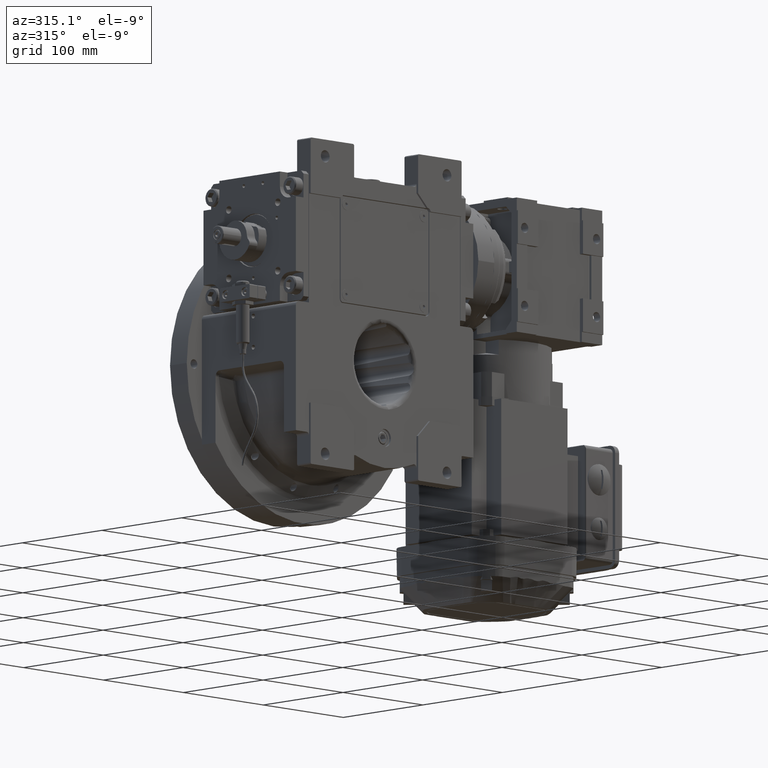
[diagram: clean part render]
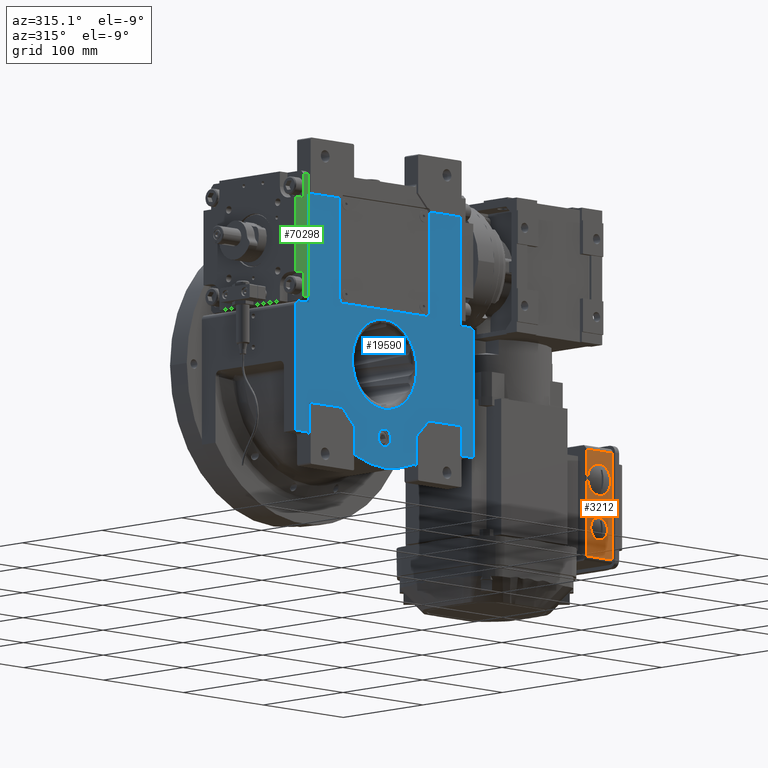
[diagram: same view with three faces highlighted in distinct colors, each labeled with its STEP entity id]
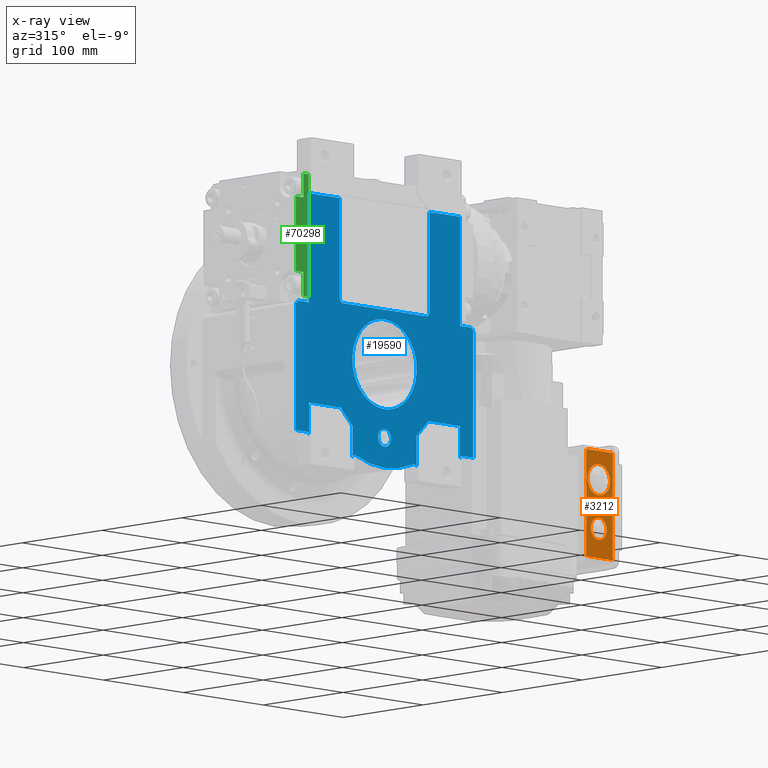
[diagram: x-ray of the same camera — body ghosted, the three highlighted faces saturated]
A machine part, auxiliary view with three faces highlighted in distinct colors.
The next image is the same camera in x-ray (body ghosted, the three faces saturated) — at least one of them is partly hidden behind the body in this view.
Their STEP definitions:

[orange] entity #3212 — the highlighted planar face has unit normal (-0, -1, 0).
#1805 = ORIENTED_EDGE ( 'NONE', *, *, #50915, .T. ) ;
#2577 = VECTOR ( 'NONE', #31025, 1000.000000000000000 ) ;
#3038 = VERTEX_POINT ( 'NONE', #28538 ) ;
#3056 = CARTESIAN_POINT ( 'NONE',  ( 157.7000000000089983, -88.50000000000000000, -22.00000000000138556 ) ) ;
#3212 = ADVANCED_FACE ( 'NONE', ( #88800, #46793, #22441 ), #39584, .T. ) ;
#3644 = CARTESIAN_POINT ( 'NONE',  ( 185.7000000000000171, -88.50000000000000000, -22.00000000000166267 ) ) ;
#4217 = DIRECTION ( 'NONE',  ( -2.142138711528201561E-47, -1.000000000000000000, -6.640859809432788890E-48 ) ) ;
#4687 = LINE ( 'NONE', #52411, #51243 ) ;
#5471 = CARTESIAN_POINT ( 'NONE',  ( 215.6999999999999886, -88.50000000000000000, -22.00000000000194333 ) ) ;
#6213 = CARTESIAN_POINT ( 'NONE',  ( 145.6999999999999886, -72.99999999999998579, -22.00000000000138556 ) ) ;
#6885 = DIRECTION ( 'NONE',  ( -8.881784197001252323E-15, 6.640859809432791321E-48, 1.000000000000000000 ) ) ;
#7254 = AXIS2_PLACEMENT_3D ( 'NONE', #57507, #49187, #73526 ) ;
#9495 = DIRECTION ( 'NONE',  ( 1.000000000000000000, 0.000000000000000000, -8.921435019315033831E-15 ) ) ;
#10370 = DIRECTION ( 'NONE',  ( -2.142138711528201561E-47, -1.000000000000000000, -6.640859809432788890E-48 ) ) ;
#11633 = ORIENTED_EDGE ( 'NONE', *, *, #81505, .T. ) ;
#11899 = EDGE_LOOP ( 'NONE', ( #11633, #35870 ) ) ;
#14381 = CARTESIAN_POINT ( 'NONE',  ( 193.7000000000000171, -72.99999999999998579, -22.00000000000180123 ) ) ;
#19653 = ORIENTED_EDGE ( 'NONE', *, *, #58312, .T. ) ;
#22441 = FACE_BOUND ( 'NONE', #35117, .T. ) ;
#22664 = LINE ( 'NONE', #14381, #78678 ) ;
#22925 = CARTESIAN_POINT ( 'NONE',  ( 241.6999999999999602, -106.0000000000000142, -22.00000000000208189 ) ) ;
#23061 = EDGE_LOOP ( 'NONE', ( #103809, #1805, #69135, #19653 ) ) ;
#28538 = CARTESIAN_POINT ( 'NONE',  ( 225.7000000000000171, -88.50000000000000000, -22.00000000000208189 ) ) ;
#28763 = CARTESIAN_POINT ( 'NONE',  ( 241.6999999999999602, -106.0000000000000142, -22.00000000000208189 ) ) ;
#29391 = ORIENTED_EDGE ( 'NONE', *, *, #101309, .T. ) ;
#31025 = DIRECTION ( 'NONE',  ( -2.142138711528201561E-47, -1.000000000000000000, -6.640859809432788890E-48 ) ) ;
#33329 = VERTEX_POINT ( 'NONE', #100977 ) ;
#33959 = CARTESIAN_POINT ( 'NONE',  ( 171.6999999999999886, -88.50000000000000000, -22.00000000000152411 ) ) ;
#33981 = AXIS2_PLACEMENT_3D ( 'NONE', #56191, #63919, #4217 ) ;
#35020 = VERTEX_POINT ( 'NONE', #37938 ) ;
#35117 = EDGE_LOOP ( 'NONE', ( #29391, #65363 ) ) ;
#35870 = ORIENTED_EDGE ( 'NONE', *, *, #67819, .T. ) ;
#37938 = CARTESIAN_POINT ( 'NONE',  ( 241.6999999999999602, -72.99999999999998579, -22.00000000000208189 ) ) ;
#38635 = DIRECTION ( 'NONE',  ( -8.881784197001252323E-15, 6.640859809432791321E-48, 1.000000000000000000 ) ) ;
#39584 = PLANE ( 'NONE',  #33981 ) ;
#39877 = CARTESIAN_POINT ( 'NONE',  ( 241.6999999999999602, -71.99999999999998579, -22.00000000000208189 ) ) ;
#42831 = VERTEX_POINT ( 'NONE', #3056 ) ;
#43221 = DIRECTION ( 'NONE',  ( -8.881784197001252323E-15, 6.640859809432791321E-48, 1.000000000000000000 ) ) ;
#44224 = VECTOR ( 'NONE', #90917, 1000.000000000000000 ) ;
#46793 = FACE_BOUND ( 'NONE', #11899, .T. ) ;
#49187 = DIRECTION ( 'NONE',  ( -8.881784197001252323E-15, 6.640859809432791321E-48, 1.000000000000000000 ) ) ;
#50734 = VERTEX_POINT ( 'NONE', #28763 ) ;
#50915 = EDGE_CURVE ( 'NONE', #79741, #35020, #22664, .T. ) ;
#51157 = VERTEX_POINT ( 'NONE', #61829 ) ;
#51243 = VECTOR ( 'NONE', #10370, 1000.000000000000000 ) ;
#52411 = CARTESIAN_POINT ( 'NONE',  ( 145.6999999999999886, -71.99999999999998579, -22.00000000000138556 ) ) ;
#52509 = CIRCLE ( 'NONE', #78939, 10.00000000001088907 ) ;
#53168 = VERTEX_POINT ( 'NONE', #3644 ) ;
#56191 = CARTESIAN_POINT ( 'NONE',  ( 193.7000000000000171, -71.99999999999998579, -22.00000000000180123 ) ) ;
#56336 = DIRECTION ( 'NONE',  ( 1.000000000000000000, 0.000000000000000000, -9.020562075069573995E-15 ) ) ;
#56409 = DIRECTION ( 'NONE',  ( 1.000000000000000000, 2.142138711528199616E-47, -8.881784197001252323E-15 ) ) ;
#57507 = CARTESIAN_POINT ( 'NONE',  ( 215.6999999999999886, -88.50000000000000000, -22.00000000000194333 ) ) ;
#58312 = EDGE_CURVE ( 'NONE', #50734, #51157, #82083, .T. ) ;
#59800 = AXIS2_PLACEMENT_3D ( 'NONE', #33959, #6885, #67672 ) ;
#61829 = CARTESIAN_POINT ( 'NONE',  ( 145.6999999999999886, -106.0000000000000142, -22.00000000000138556 ) ) ;
#63919 = DIRECTION ( 'NONE',  ( 8.881784197001252323E-15, 6.640859809432598067E-48, -1.000000000000000000 ) ) ;
#65363 = ORIENTED_EDGE ( 'NONE', *, *, #87382, .T. ) ;
#67672 = DIRECTION ( 'NONE',  ( 1.000000000000000000, 0.000000000000000000, -8.921435019315033831E-15 ) ) ;
#67819 = EDGE_CURVE ( 'NONE', #42831, #53168, #86217, .T. ) ;
#69135 = ORIENTED_EDGE ( 'NONE', *, *, #108612, .T. ) ;
#70146 = CIRCLE ( 'NONE', #84281, 13.99999999999099209 ) ;
#73526 = DIRECTION ( 'NONE',  ( 1.000000000000000000, 0.000000000000000000, -9.020562075069573995E-15 ) ) ;
#74330 = CIRCLE ( 'NONE', #7254, 10.00000000001088907 ) ;
#78678 = VECTOR ( 'NONE', #56409, 1000.000000000000000 ) ;
#78939 = AXIS2_PLACEMENT_3D ( 'NONE', #5471, #38635, #56336 ) ;
#79741 = VERTEX_POINT ( 'NONE', #6213 ) ;
#81505 = EDGE_CURVE ( 'NONE', #53168, #42831, #70146, .T. ) ;
#82083 = LINE ( 'NONE', #22925, #44224 ) ;
#84281 = AXIS2_PLACEMENT_3D ( 'NONE', #94088, #43221, #9495 ) ;
#86217 = CIRCLE ( 'NONE', #59800, 13.99999999999099209 ) ;
#87382 = EDGE_CURVE ( 'NONE', #33329, #3038, #74330, .T. ) ;
#88800 = FACE_OUTER_BOUND ( 'NONE', #23061, .T. ) ;
#90917 = DIRECTION ( 'NONE',  ( -1.000000000000000000, -2.142138711528199616E-47, 8.881784197001252323E-15 ) ) ;
#94088 = CARTESIAN_POINT ( 'NONE',  ( 171.6999999999999886, -88.50000000000000000, -22.00000000000152411 ) ) ;
#100977 = CARTESIAN_POINT ( 'NONE',  ( 205.6999999999889894, -88.50000000000000000, -22.00000000000194333 ) ) ;
#101309 = EDGE_CURVE ( 'NONE', #3038, #33329, #52509, .T. ) ;
#103809 = ORIENTED_EDGE ( 'NONE', *, *, #104425, .F. ) ;
#104425 = EDGE_CURVE ( 'NONE', #79741, #51157, #4687, .T. ) ;
#106789 = LINE ( 'NONE', #39877, #2577 ) ;
#108612 = EDGE_CURVE ( 'NONE', #35020, #50734, #106789, .T. ) ;

[blue] entity #19590 — the highlighted planar face has unit normal (0, 1, 0).
#251 = DIRECTION ( 'NONE',  ( 0.000000000000000000, 1.000000000000000000, 0.000000000000000000 ) ) ;
#573 = VERTEX_POINT ( 'NONE', #32188 ) ;
#626 = CIRCLE ( 'NONE', #67680, 92.99999999999995737 ) ;
#630 = CARTESIAN_POINT ( 'NONE',  ( 1.264666971694413862E-10, -53.50000000000000000, -40.30959420574829721 ) ) ;
#1095 = DIRECTION ( 'NONE',  ( 1.000000000000000000, 0.000000000000000000, 0.000000000000000000 ) ) ;
#1739 = LINE ( 'NONE', #8945, #104218 ) ;
#1842 = LINE ( 'NONE', #94720, #95482 ) ;
#2372 = VERTEX_POINT ( 'NONE', #39304 ) ;
#3259 = CARTESIAN_POINT ( 'NONE',  ( -8.881784197001250351E-16, -53.50000000000000000, -66.00000000000000000 ) ) ;
#3626 = VERTEX_POINT ( 'NONE', #53869 ) ;
#4277 = ORIENTED_EDGE ( 'NONE', *, *, #41148, .F. ) ;
#4386 = ORIENTED_EDGE ( 'NONE', *, *, #44337, .F. ) ;
#4595 = LINE ( 'NONE', #28386, #42633 ) ;
#4778 = DIRECTION ( 'NONE',  ( 1.000000000000000000, 0.000000000000000000, 1.387778780781246883E-14 ) ) ;
#4898 = CARTESIAN_POINT ( 'NONE',  ( -52.00000000000000000, -53.50000000000000000, 53.00000000000000000 ) ) ;
#5180 = ORIENTED_EDGE ( 'NONE', *, *, #100470, .F. ) ;
#5559 = CARTESIAN_POINT ( 'NONE',  ( 94.50000000000000000, -53.50000000000000000, -45.00000000000000000 ) ) ;
#5914 = ORIENTED_EDGE ( 'NONE', *, *, #95087, .F. ) ;
#5950 = LINE ( 'NONE', #22526, #91556 ) ;
#6041 = ORIENTED_EDGE ( 'NONE', *, *, #63861, .F. ) ;
#6825 = AXIS2_PLACEMENT_3D ( 'NONE', #3259, #36983, #70677 ) ;
#7002 = CARTESIAN_POINT ( 'NONE',  ( 97.50000000000000000, -53.50000000000000000, -74.43528539874399996 ) ) ;
#7051 = CARTESIAN_POINT ( 'NONE',  ( -94.50000000000000000, -53.50000000000000000, 143.0000000000000000 ) ) ;
#7073 = DIRECTION ( 'NONE',  ( 0.000000000000000000, 0.000000000000000000, -1.000000000000000000 ) ) ;
#7432 = EDGE_CURVE ( 'NONE', #34618, #53381, #5950, .T. ) ;
#8945 = CARTESIAN_POINT ( 'NONE',  ( -55.00000000000000000, -53.50000000000000000, -45.00000000000000000 ) ) ;
#9068 = DIRECTION ( 'NONE',  ( 1.000000000000000000, 0.000000000000000000, 0.000000000000000000 ) ) ;
#9814 = CIRCLE ( 'NONE', #25693, 3.000000000000002665 ) ;
#9931 = LINE ( 'NONE', #108944, #91611 ) ;
#9952 = VERTEX_POINT ( 'NONE', #92984 ) ;
#10142 = CARTESIAN_POINT ( 'NONE',  ( 56.00000000000000000, -53.50000000000000000, 142.0000000000000000 ) ) ;
#10312 = DIRECTION ( 'NONE',  ( 0.000000000000000000, -1.000000000000000000, 0.000000000000000000 ) ) ;
#10703 = DIRECTION ( 'NONE',  ( 0.000000000000000000, -1.000000000000000000, 0.000000000000000000 ) ) ;
#11915 = VERTEX_POINT ( 'NONE', #23320 ) ;
#12497 = DIRECTION ( 'NONE',  ( 0.000000000000000000, -1.000000000000000000, 0.000000000000000000 ) ) ;
#12589 = CARTESIAN_POINT ( 'NONE',  ( 107.0000000000000000, -53.50000000000000000, 41.00000000000000000 ) ) ;
#13190 = CARTESIAN_POINT ( 'NONE',  ( -94.50000000000000000, -53.50000000000000000, -74.43528539874409944 ) ) ;
#13274 = ORIENTED_EDGE ( 'NONE', *, *, #35000, .T. ) ;
#13939 = VERTEX_POINT ( 'NONE', #83299 ) ;
#14247 = AXIS2_PLACEMENT_3D ( 'NONE', #12589, #62908, #103826 ) ;
#14564 = VERTEX_POINT ( 'NONE', #10142 ) ;
#14767 = VERTEX_POINT ( 'NONE', #30560 ) ;
#14827 = CARTESIAN_POINT ( 'NONE',  ( 1.264666971694413862E-10, -53.50000000000000000, -40.30959420574829721 ) ) ;
#15657 = CIRCLE ( 'NONE', #6825, 8.000000000000000000 ) ;
#16029 = EDGE_CURVE ( 'NONE', #64399, #82327, #42224, .T. ) ;
#16260 = DIRECTION ( 'NONE',  ( 0.000000000000000000, 0.000000000000000000, -1.000000000000000000 ) ) ;
#16553 = CARTESIAN_POINT ( 'NONE',  ( 94.50000000000000000, -53.50000000000000000, 143.0000000000000000 ) ) ;
#17122 = EDGE_CURVE ( 'NONE', #19386, #43393, #82109, .T. ) ;
#17365 = EDGE_CURVE ( 'NONE', #43393, #74241, #65005, .T. ) ;
#17742 = EDGE_CURVE ( 'NONE', #2372, #14767, #49340, .T. ) ;
#18131 = EDGE_CURVE ( 'NONE', #90636, #42449, #40901, .T. ) ;
#18137 = ORIENTED_EDGE ( 'NONE', *, *, #48004, .T. ) ;
#18676 = CARTESIAN_POINT ( 'NONE',  ( 111.0000000000000000, -53.50000000000000000, -71.43528539874399996 ) ) ;
#18992 = DIRECTION ( 'NONE',  ( -0.7071067811865474617, 0.000000000000000000, -0.7071067811865474617 ) ) ;
#19386 = VERTEX_POINT ( 'NONE', #68409 ) ;
#19590 = ADVANCED_FACE ( 'NONE', ( #107608, #65592, #107072 ), #108153, .F. ) ;
#20119 = CARTESIAN_POINT ( 'NONE',  ( 40.00000000000000000, -53.50000000000000000, -88.58329413608420566 ) ) ;
#20313 = VERTEX_POINT ( 'NONE', #97425 ) ;
#20457 = ORIENTED_EDGE ( 'NONE', *, *, #46733, .T. ) ;
#21026 = AXIS2_PLACEMENT_3D ( 'NONE', #26925, #10312, #4778 ) ;
#21084 = CARTESIAN_POINT ( 'NONE',  ( -107.0000000000000000, -53.50000000000000000, 41.00000000000000000 ) ) ;
#21384 = VECTOR ( 'NONE', #24992, 1000.000000000000000 ) ;
#21645 = ORIENTED_EDGE ( 'NONE', *, *, #69999, .F. ) ;
#22325 = EDGE_CURVE ( 'NONE', #573, #14564, #108861, .T. ) ;
#22343 = ORIENTED_EDGE ( 'NONE', *, *, #57520, .T. ) ;
#22439 = DIRECTION ( 'NONE',  ( -0.3854166666666676289, 0.000000000000000000, 0.9227426472508761801 ) ) ;
#22526 = CARTESIAN_POINT ( 'NONE',  ( -94.50000000000000000, -53.50000000000000000, 143.0000000000000000 ) ) ;
#23120 = DIRECTION ( 'NONE',  ( 0.000000000000000000, -1.000000000000000000, 0.000000000000000000 ) ) ;
#23320 = CARTESIAN_POINT ( 'NONE',  ( -40.00000000000000000, -53.50000000000000000, -88.58329413608420566 ) ) ;
#24005 = CARTESIAN_POINT ( 'NONE',  ( 40.00000000000000000, -53.50000000000000000, -60.00000000000000000 ) ) ;
#24675 = AXIS2_PLACEMENT_3D ( 'NONE', #83543, #50377, #36898 ) ;
#24920 = CARTESIAN_POINT ( 'NONE',  ( -56.00000000000000000, -53.50000000000000000, 53.00000000000000000 ) ) ;
#24929 = ORIENTED_EDGE ( 'NONE', *, *, #85616, .F. ) ;
#24992 = DIRECTION ( 'NONE',  ( 1.000000000000000000, 0.000000000000000000, 0.000000000000000000 ) ) ;
#25299 = AXIS2_PLACEMENT_3D ( 'NONE', #4898, #23120, #32503 ) ;
#25693 = AXIS2_PLACEMENT_3D ( 'NONE', #7002, #40732, #108739 ) ;
#25906 = CARTESIAN_POINT ( 'NONE',  ( 8.000000000000000000, -53.50000000000000000, -66.00000000000000000 ) ) ;
#26282 = EDGE_LOOP ( 'NONE', ( #63156, #22343 ) ) ;
#26775 = ORIENTED_EDGE ( 'NONE', *, *, #84114, .F. ) ;
#26794 = DIRECTION ( 'NONE',  ( 0.000000000000000000, 0.000000000000000000, 1.000000000000000000 ) ) ;
#26925 = CARTESIAN_POINT ( 'NONE',  ( 51.99999999999940314, -53.50000000000000000, 142.0000000000000000 ) ) ;
#27075 = ORIENTED_EDGE ( 'NONE', *, *, #22325, .F. ) ;
#27101 = VERTEX_POINT ( 'NONE', #39969 ) ;
#28039 = CIRCLE ( 'NONE', #21026, 4.000000000000572875 ) ;
#28285 = AXIS2_PLACEMENT_3D ( 'NONE', #97834, #97275, #56370 ) ;
#28386 = CARTESIAN_POINT ( 'NONE',  ( 55.00000000000000000, -53.50000000000000000, -45.00000000000000000 ) ) ;
#28434 = VECTOR ( 'NONE', #36791, 1000.000000000000000 ) ;
#29035 = CARTESIAN_POINT ( 'NONE',  ( -55.00000000000000000, -53.50000000000000000, -45.00000000000000000 ) ) ;
#29369 = DIRECTION ( 'NONE',  ( -3.469446951953617344E-15, 0.000000000000000000, 1.000000000000000000 ) ) ;
#29743 = VECTOR ( 'NONE', #26794, 1000.000000000000000 ) ;
#29913 = DIRECTION ( 'NONE',  ( 0.000000000000000000, -1.000000000000000000, 0.000000000000000000 ) ) ;
#30230 = VERTEX_POINT ( 'NONE', #97337 ) ;
#30453 = DIRECTION ( 'NONE',  ( 6.319570704518680589E-16, 0.000000000000000000, 1.000000000000000000 ) ) ;
#30560 = CARTESIAN_POINT ( 'NONE',  ( -94.50000000000000000, -53.50000000000000000, 45.00000000000000000 ) ) ;
#30720 = DIRECTION ( 'NONE',  ( 1.000000000000000000, 0.000000000000000000, 0.000000000000000000 ) ) ;
#31646 =( BOUNDED_CURVE ( )  B_SPLINE_CURVE ( 3, ( #108448, #34348, #92402, #630 ),
 .UNSPECIFIED., .F., .F. ) 
 B_SPLINE_CURVE_WITH_KNOTS ( ( 4, 4 ),
 ( 4.574175343352308687, 7.715766673011676957 ),
 .UNSPECIFIED. ) 
 CURVE ( )  GEOMETRIC_REPRESENTATION_ITEM ( )  RATIONAL_B_SPLINE_CURVE ( ( 1.000000000000000000, 0.3333337746434750226, 0.3333337746434750226, 1.000000000000000000 ) ) 
 REPRESENTATION_ITEM ( '' )  );
#31716 = VERTEX_POINT ( 'NONE', #18676 ) ;
#32188 = CARTESIAN_POINT ( 'NONE',  ( 56.00000000000000000, -53.50000000000000000, 53.00000000000000000 ) ) ;
#32355 = DIRECTION ( 'NONE',  ( 0.000000000000000000, 0.000000000000000000, -1.000000000000000000 ) ) ;
#32461 = EDGE_LOOP ( 'NONE', ( #70068, #5914, #56764, #24929, #56259, #104214, #34679, #64378, #83946, #46102, #94807, #64218, #21645, #98805, #26775, #76427, #83138, #13274, #93562, #4386, #60217, #6041, #40421, #18137, #20457, #108441, #5180, #83955, #102303, #86743, #27075, #4277 ) ) ;
#32503 = DIRECTION ( 'NONE',  ( -1.000000000000000000, 0.000000000000000000, 1.734723475976808672E-15 ) ) ;
#32740 = CARTESIAN_POINT ( 'NONE',  ( -107.0000000000000000, -53.50000000000000000, 45.00000000000000000 ) ) ;
#34283 = LINE ( 'NONE', #100633, #103255 ) ;
#34348 = CARTESIAN_POINT ( 'NONE',  ( 80.61913312099713380, -53.49999999999999289, 40.30952624498025472 ) ) ;
#34618 = VERTEX_POINT ( 'NONE', #7051 ) ;
#34679 = ORIENTED_EDGE ( 'NONE', *, *, #17742, .F. ) ;
#35000 = EDGE_CURVE ( 'NONE', #85173, #82327, #38551, .T. ) ;
#35113 = CARTESIAN_POINT ( 'NONE',  ( -40.00000000000000000, -53.50000000000000000, -88.58329413608420566 ) ) ;
#35298 = DIRECTION ( 'NONE',  ( 0.000000000000000000, 0.000000000000000000, 1.000000000000000000 ) ) ;
#35747 = EDGE_CURVE ( 'NONE', #30230, #51120, #15657, .T. ) ;
#36294 = EDGE_CURVE ( 'NONE', #14564, #84661, #28039, .T. ) ;
#36791 = DIRECTION ( 'NONE',  ( 1.000000000000000000, 0.000000000000000000, 0.000000000000000000 ) ) ;
#36898 = DIRECTION ( 'NONE',  ( -0.9682458365518610277, 0.000000000000000000, 0.2499999999999737432 ) ) ;
#36983 = DIRECTION ( 'NONE',  ( 0.000000000000000000, -1.000000000000000000, 0.000000000000000000 ) ) ;
#38551 = CIRCLE ( 'NONE', #63256, 3.000000000000003997 ) ;
#38685 = CARTESIAN_POINT ( 'NONE',  ( -40.00000000000000000, -53.50000000000000000, -60.00000000000000000 ) ) ;
#39304 = CARTESIAN_POINT ( 'NONE',  ( -107.0000000000000000, -53.50000000000000000, 45.00000000000000000 ) ) ;
#39938 = VERTEX_POINT ( 'NONE', #58093 ) ;
#39969 = CARTESIAN_POINT ( 'NONE',  ( -52.00000000000000000, -53.50000000000000000, 49.00000000000000000 ) ) ;
#40421 = ORIENTED_EDGE ( 'NONE', *, *, #98028, .T. ) ;
#40545 = EDGE_CURVE ( 'NONE', #11915, #13939, #97020, .T. ) ;
#40732 = DIRECTION ( 'NONE',  ( 0.000000000000000000, 1.000000000000000000, 0.000000000000000000 ) ) ;
#40901 = LINE ( 'NONE', #16553, #76219 ) ;
#41143 = AXIS2_PLACEMENT_3D ( 'NONE', #100247, #100808, #42731 ) ;
#41148 = EDGE_CURVE ( 'NONE', #9952, #573, #107779, .T. ) ;
#41163 = DIRECTION ( 'NONE',  ( 0.000000000000000000, 0.000000000000000000, 1.000000000000000000 ) ) ;
#41383 = VERTEX_POINT ( 'NONE', #99466 ) ;
#41422 = CARTESIAN_POINT ( 'NONE',  ( -52.00000000000000000, -53.50000000000000000, 49.00000000000000000 ) ) ;
#42224 = LINE ( 'NONE', #24005, #50632 ) ;
#42449 = VERTEX_POINT ( 'NONE', #71709 ) ;
#42475 = CIRCLE ( 'NONE', #14247, 4.000000000000003553 ) ;
#42633 = VECTOR ( 'NONE', #18992, 1000.000000000000114 ) ;
#42731 = DIRECTION ( 'NONE',  ( -1.000000000000000000, 0.000000000000000000, 4.625929269271481378E-15 ) ) ;
#43128 = VERTEX_POINT ( 'NONE', #65496 ) ;
#43393 = VERTEX_POINT ( 'NONE', #96891 ) ;
#43449 = LINE ( 'NONE', #78802, #28434 ) ;
#44104 = CIRCLE ( 'NONE', #24675, 4.000000000000978773 ) ;
#44337 = EDGE_CURVE ( 'NONE', #71402, #64399, #4595, .T. ) ;
#44616 = VECTOR ( 'NONE', #97896, 1000.000000000000000 ) ;
#46102 = ORIENTED_EDGE ( 'NONE', *, *, #17122, .T. ) ;
#46733 = EDGE_CURVE ( 'NONE', #31716, #54063, #91235, .T. ) ;
#47927 = DIRECTION ( 'NONE',  ( 1.000000000000000000, 0.000000000000000000, 0.000000000000000000 ) ) ;
#48004 = EDGE_CURVE ( 'NONE', #94002, #31716, #34283, .T. ) ;
#49340 = LINE ( 'NONE', #32740, #21384 ) ;
#50377 = DIRECTION ( 'NONE',  ( 0.000000000000000000, -1.000000000000000000, 0.000000000000000000 ) ) ;
#50508 = VERTEX_POINT ( 'NONE', #29035 ) ;
#50632 = VECTOR ( 'NONE', #16260, 1000.000000000000000 ) ;
#50867 = AXIS2_PLACEMENT_3D ( 'NONE', #75961, #251, #41163 ) ;
#51120 = VERTEX_POINT ( 'NONE', #25906 ) ;
#52597 = DIRECTION ( 'NONE',  ( -1.000000000000000000, 0.000000000000000000, 0.000000000000000000 ) ) ;
#53381 = VERTEX_POINT ( 'NONE', #85636 ) ;
#53484 = CARTESIAN_POINT ( 'NONE',  ( 94.50000000000000000, -53.50000000000000000, 143.0000000000000000 ) ) ;
#53869 = CARTESIAN_POINT ( 'NONE',  ( 1.264666971694413862E-10, -53.50000000000000000, -40.30959420574829721 ) ) ;
#54063 = VERTEX_POINT ( 'NONE', #77611 ) ;
#54712 = AXIS2_PLACEMENT_3D ( 'NONE', #91532, #66125, #47927 ) ;
#54723 = VERTEX_POINT ( 'NONE', #106627 ) ;
#55085 = CARTESIAN_POINT ( 'NONE',  ( 1.421085471520200056E-14, -53.50000000000000000, -4.263256414560599853E-14 ) ) ;
#55254 = CIRCLE ( 'NONE', #25299, 3.999999999999996447 ) ;
#55451 = VECTOR ( 'NONE', #30453, 1000.000000000000000 ) ;
#55548 = LINE ( 'NONE', #87598, #57259 ) ;
#56259 = ORIENTED_EDGE ( 'NONE', *, *, #7432, .F. ) ;
#56370 = DIRECTION ( 'NONE',  ( 0.000000000000000000, 0.000000000000000000, -1.000000000000000000 ) ) ;
#56699 = CARTESIAN_POINT ( 'NONE',  ( -111.0000000000000000, -53.50000000000000000, -71.43528539874409944 ) ) ;
#56764 = ORIENTED_EDGE ( 'NONE', *, *, #82121, .F. ) ;
#57259 = VECTOR ( 'NONE', #89256, 1000.000000000000000 ) ;
#57402 = DIRECTION ( 'NONE',  ( 1.000000000000000000, 0.000000000000000000, 0.000000000000000000 ) ) ;
#57407 = CARTESIAN_POINT ( 'NONE',  ( -80.61913312124997333, -53.49999999999999289, 40.30955543265923069 ) ) ;
#57516 = LINE ( 'NONE', #5559, #44616 ) ;
#57520 = EDGE_CURVE ( 'NONE', #84443, #3626, #31646, .T. ) ;
#58093 = CARTESIAN_POINT ( 'NONE',  ( -111.0000000000000000, -53.50000000000000000, 41.00000000000000000 ) ) ;
#58206 = VECTOR ( 'NONE', #80686, 1000.000000000000114 ) ;
#58334 = CARTESIAN_POINT ( 'NONE',  ( -56.00000000000000000, -53.50000000000000000, 142.0000000000000000 ) ) ;
#59999 = CARTESIAN_POINT ( 'NONE',  ( -56.00000000000000000, -53.50000000000000000, 142.0000000000000000 ) ) ;
#60217 = ORIENTED_EDGE ( 'NONE', *, *, #60511, .F. ) ;
#60511 = EDGE_CURVE ( 'NONE', #41383, #71402, #57516, .T. ) ;
#62038 = EDGE_CURVE ( 'NONE', #3626, #84443, #108495, .T. ) ;
#62185 = CIRCLE ( 'NONE', #106398, 3.999999999999996447 ) ;
#62908 = DIRECTION ( 'NONE',  ( 0.000000000000000000, -1.000000000000000000, 0.000000000000000000 ) ) ;
#63156 = ORIENTED_EDGE ( 'NONE', *, *, #62038, .T. ) ;
#63256 = AXIS2_PLACEMENT_3D ( 'NONE', #89891, #88237, #22439 ) ;
#63861 = EDGE_CURVE ( 'NONE', #20313, #41383, #55548, .T. ) ;
#64218 = ORIENTED_EDGE ( 'NONE', *, *, #101400, .F. ) ;
#64378 = ORIENTED_EDGE ( 'NONE', *, *, #90016, .T. ) ;
#64399 = VERTEX_POINT ( 'NONE', #81358 ) ;
#64509 = VERTEX_POINT ( 'NONE', #24920 ) ;
#64935 = VECTOR ( 'NONE', #82636, 1000.000000000000000 ) ;
#65005 = CIRCLE ( 'NONE', #50867, 3.000000000000002665 ) ;
#65496 = CARTESIAN_POINT ( 'NONE',  ( -40.00000000000000000, -53.50000000000000000, -60.00000000000000000 ) ) ;
#65592 = FACE_BOUND ( 'NONE', #76585, .T. ) ;
#66125 = DIRECTION ( 'NONE',  ( -0.000000000000000000, 1.000000000000000000, 0.000000000000000000 ) ) ;
#66218 = CARTESIAN_POINT ( 'NONE',  ( -1.264761546777279996E-10, -53.50000000000000000, 40.30959420574835406 ) ) ;
#66810 = CARTESIAN_POINT ( 'NONE',  ( -94.50000000000000000, -53.50000000000000000, -45.00000000000000000 ) ) ;
#67680 = AXIS2_PLACEMENT_3D ( 'NONE', #55085, #12497, #81040 ) ;
#67921 = CARTESIAN_POINT ( 'NONE',  ( 56.00000000000000000, -53.50000000000000000, 53.00000000000000000 ) ) ;
#67937 = LINE ( 'NONE', #41422, #81680 ) ;
#68409 = CARTESIAN_POINT ( 'NONE',  ( -111.0000000000000000, -53.50000000000000000, -71.43528539874409944 ) ) ;
#69270 = DIRECTION ( 'NONE',  ( 0.000000000000000000, 0.000000000000000000, 1.000000000000000000 ) ) ;
#69307 = CARTESIAN_POINT ( 'NONE',  ( 8.881784197001250351E-16, -53.50000000000000000, -66.00000000000000000 ) ) ;
#69999 = EDGE_CURVE ( 'NONE', #50508, #104170, #1739, .T. ) ;
#70068 = ORIENTED_EDGE ( 'NONE', *, *, #106312, .F. ) ;
#70677 = DIRECTION ( 'NONE',  ( -1.000000000000000000, 0.000000000000000000, 0.000000000000000000 ) ) ;
#71402 = VERTEX_POINT ( 'NONE', #96937 ) ;
#71709 = CARTESIAN_POINT ( 'NONE',  ( 94.50000000000000000, -53.50000000000000000, 45.00000000000000000 ) ) ;
#74241 = VERTEX_POINT ( 'NONE', #13190 ) ;
#74943 = CARTESIAN_POINT ( 'NONE',  ( 35.84375000000000000, -53.50000000000000000, -85.81506619433150718 ) ) ;
#75961 = CARTESIAN_POINT ( 'NONE',  ( -97.50000000000000000, -53.50000000000000000, -74.43528539874409944 ) ) ;
#76219 = VECTOR ( 'NONE', #108361, 1000.000000000000000 ) ;
#76427 = ORIENTED_EDGE ( 'NONE', *, *, #40545, .T. ) ;
#76585 = EDGE_LOOP ( 'NONE', ( #77700, #92071 ) ) ;
#77287 = VECTOR ( 'NONE', #57402, 1000.000000000000000 ) ;
#77378 = DIRECTION ( 'NONE',  ( 0.000000000000000000, 0.000000000000000000, -1.000000000000000000 ) ) ;
#77611 = CARTESIAN_POINT ( 'NONE',  ( 111.0000000000000000, -53.50000000000000000, 41.00000000000000000 ) ) ;
#77700 = ORIENTED_EDGE ( 'NONE', *, *, #93351, .F. ) ;
#78802 = CARTESIAN_POINT ( 'NONE',  ( 55.87298334620739837, -53.50000000000000000, 143.0000000000000000 ) ) ;
#79073 = VECTOR ( 'NONE', #32355, 1000.000000000000000 ) ;
#79690 = LINE ( 'NONE', #35113, #29743 ) ;
#80686 = DIRECTION ( 'NONE',  ( -0.7071067811865474617, 0.000000000000000000, 0.7071067811865474617 ) ) ;
#80760 = VECTOR ( 'NONE', #7073, 1000.000000000000000 ) ;
#81040 = DIRECTION ( 'NONE',  ( -0.3854166666666672403, 0.000000000000000000, -0.9227426472508764022 ) ) ;
#81358 = CARTESIAN_POINT ( 'NONE',  ( 40.00000000000000000, -53.50000000000000000, -60.00000000000000000 ) ) ;
#81680 = VECTOR ( 'NONE', #30720, 1000.000000000000000 ) ;
#82109 = LINE ( 'NONE', #56699, #64935 ) ;
#82121 = EDGE_CURVE ( 'NONE', #101935, #64509, #108100, .T. ) ;
#82327 = VERTEX_POINT ( 'NONE', #20119 ) ;
#82636 = DIRECTION ( 'NONE',  ( 1.000000000000000000, 0.000000000000000000, 0.000000000000000000 ) ) ;
#82789 = CARTESIAN_POINT ( 'NONE',  ( 94.50000000000000000, -53.50000000000000000, 45.00000000000000000 ) ) ;
#83138 = ORIENTED_EDGE ( 'NONE', *, *, #107513, .T. ) ;
#83299 = CARTESIAN_POINT ( 'NONE',  ( -35.84375000000000000, -53.50000000000000000, -85.81506619433150718 ) ) ;
#83543 = CARTESIAN_POINT ( 'NONE',  ( -51.99999999999900524, -53.50000000000000000, 142.0000000000000000 ) ) ;
#83946 = ORIENTED_EDGE ( 'NONE', *, *, #84436, .T. ) ;
#83955 = ORIENTED_EDGE ( 'NONE', *, *, #18131, .F. ) ;
#84114 = EDGE_CURVE ( 'NONE', #11915, #43128, #79690, .T. ) ;
#84436 = EDGE_CURVE ( 'NONE', #39938, #19386, #9931, .T. ) ;
#84443 = VERTEX_POINT ( 'NONE', #101207 ) ;
#84661 = VERTEX_POINT ( 'NONE', #102702 ) ;
#85173 = VERTEX_POINT ( 'NONE', #74943 ) ;
#85310 = CIRCLE ( 'NONE', #95881, 8.000000000000000000 ) ;
#85616 = EDGE_CURVE ( 'NONE', #53381, #101935, #44104, .T. ) ;
#85636 = CARTESIAN_POINT ( 'NONE',  ( -55.87298334620739837, -53.50000000000000000, 143.0000000000000000 ) ) ;
#86444 = EDGE_CURVE ( 'NONE', #14767, #34618, #1842, .T. ) ;
#86743 = ORIENTED_EDGE ( 'NONE', *, *, #36294, .F. ) ;
#87598 = CARTESIAN_POINT ( 'NONE',  ( 94.50000000000000000, -53.50000000000000000, -74.43528539874399996 ) ) ;
#88237 = DIRECTION ( 'NONE',  ( 0.000000000000000000, 1.000000000000000000, 0.000000000000000000 ) ) ;
#89256 = DIRECTION ( 'NONE',  ( 0.000000000000000000, 0.000000000000000000, 1.000000000000000000 ) ) ;
#89891 = CARTESIAN_POINT ( 'NONE',  ( 37.00000000000000000, -53.50000000000000000, -88.58329413608420566 ) ) ;
#90016 = EDGE_CURVE ( 'NONE', #2372, #39938, #62185, .T. ) ;
#90636 = VERTEX_POINT ( 'NONE', #53484 ) ;
#91222 = CARTESIAN_POINT ( 'NONE',  ( 97.50000000000000000, -53.50000000000000000, -71.43528539874399996 ) ) ;
#91235 = LINE ( 'NONE', #98998, #55451 ) ;
#91532 = CARTESIAN_POINT ( 'NONE',  ( 0.000000000000000000, -53.50000000000000000, 0.000000000000000000 ) ) ;
#91556 = VECTOR ( 'NONE', #107652, 1000.000000000000000 ) ;
#91611 = VECTOR ( 'NONE', #77378, 1000.000000000000000 ) ;
#92071 = ORIENTED_EDGE ( 'NONE', *, *, #35747, .F. ) ;
#92402 = CARTESIAN_POINT ( 'NONE',  ( 80.61913312125007280, -53.49999999999999289, -40.30955543265933727 ) ) ;
#92984 = CARTESIAN_POINT ( 'NONE',  ( 52.00000000000000000, -53.50000000000000000, 49.00000000000000000 ) ) ;
#93269 = LINE ( 'NONE', #82789, #77287 ) ;
#93287 = LINE ( 'NONE', #101050, #80760 ) ;
#93351 = EDGE_CURVE ( 'NONE', #51120, #30230, #85310, .T. ) ;
#93562 = ORIENTED_EDGE ( 'NONE', *, *, #16029, .F. ) ;
#94002 = VERTEX_POINT ( 'NONE', #91222 ) ;
#94720 = CARTESIAN_POINT ( 'NONE',  ( -94.50000000000000000, -53.50000000000000000, 45.00000000000000000 ) ) ;
#94807 = ORIENTED_EDGE ( 'NONE', *, *, #17365, .T. ) ;
#95087 = EDGE_CURVE ( 'NONE', #64509, #27101, #55254, .T. ) ;
#95482 = VECTOR ( 'NONE', #69270, 1000.000000000000000 ) ;
#95881 = AXIS2_PLACEMENT_3D ( 'NONE', #69307, #10703, #9068 ) ;
#96891 = CARTESIAN_POINT ( 'NONE',  ( -97.50000000000000000, -53.50000000000000000, -71.43528539874409944 ) ) ;
#96937 = CARTESIAN_POINT ( 'NONE',  ( 55.00000000000000000, -53.50000000000000000, -45.00000000000000000 ) ) ;
#97020 = CIRCLE ( 'NONE', #41143, 3.000000000000002665 ) ;
#97275 = DIRECTION ( 'NONE',  ( 0.000000000000000000, -1.000000000000000000, 0.000000000000000000 ) ) ;
#97337 = CARTESIAN_POINT ( 'NONE',  ( -8.000000000000000000, -53.50000000000000000, -66.00000000000000000 ) ) ;
#97425 = CARTESIAN_POINT ( 'NONE',  ( 94.50000000000000000, -53.50000000000000000, -74.43528539874399996 ) ) ;
#97834 = CARTESIAN_POINT ( 'NONE',  ( 52.00000000000000000, -53.50000000000000000, 53.00000000000000000 ) ) ;
#97896 = DIRECTION ( 'NONE',  ( -1.000000000000000000, 0.000000000000000000, 0.000000000000000000 ) ) ;
#98028 = EDGE_CURVE ( 'NONE', #20313, #94002, #9814, .T. ) ;
#98805 = ORIENTED_EDGE ( 'NONE', *, *, #103989, .F. ) ;
#98998 = CARTESIAN_POINT ( 'NONE',  ( 111.0000000000000000, -53.50000000000000000, -71.43528539874399996 ) ) ;
#99421 = CARTESIAN_POINT ( 'NONE',  ( -80.61913312099703433, -53.49999999999999289, -40.30952624498007708 ) ) ;
#99466 = CARTESIAN_POINT ( 'NONE',  ( 94.50000000000000000, -53.50000000000000000, -45.00000000000000000 ) ) ;
#100247 = CARTESIAN_POINT ( 'NONE',  ( -37.00000000000000000, -53.50000000000000000, -88.58329413608420566 ) ) ;
#100470 = EDGE_CURVE ( 'NONE', #42449, #54723, #93269, .T. ) ;
#100633 = CARTESIAN_POINT ( 'NONE',  ( 97.50000000000000000, -53.50000000000000000, -71.43528539874399996 ) ) ;
#100808 = DIRECTION ( 'NONE',  ( 0.000000000000000000, 1.000000000000000000, 0.000000000000000000 ) ) ;
#101050 = CARTESIAN_POINT ( 'NONE',  ( -94.50000000000000000, -53.50000000000000000, -45.00000000000000000 ) ) ;
#101207 = CARTESIAN_POINT ( 'NONE',  ( -1.264761546777279996E-10, -53.50000000000000000, 40.30959420574835406 ) ) ;
#101400 = EDGE_CURVE ( 'NONE', #104170, #74241, #93287, .T. ) ;
#101935 = VERTEX_POINT ( 'NONE', #59999 ) ;
#102303 = ORIENTED_EDGE ( 'NONE', *, *, #105836, .F. ) ;
#102702 = CARTESIAN_POINT ( 'NONE',  ( 55.87298334620739837, -53.50000000000000000, 143.0000000000000000 ) ) ;
#103255 = VECTOR ( 'NONE', #1095, 1000.000000000000000 ) ;
#103826 = DIRECTION ( 'NONE',  ( 1.000000000000000000, 0.000000000000000000, 5.204170427930416550E-15 ) ) ;
#103989 = EDGE_CURVE ( 'NONE', #43128, #50508, #106708, .T. ) ;
#104170 = VERTEX_POINT ( 'NONE', #66810 ) ;
#104214 = ORIENTED_EDGE ( 'NONE', *, *, #86444, .F. ) ;
#104218 = VECTOR ( 'NONE', #52597, 1000.000000000000000 ) ;
#105346 = EDGE_CURVE ( 'NONE', #54063, #54723, #42475, .T. ) ;
#105836 = EDGE_CURVE ( 'NONE', #84661, #90636, #43449, .T. ) ;
#106312 = EDGE_CURVE ( 'NONE', #27101, #9952, #67937, .T. ) ;
#106398 = AXIS2_PLACEMENT_3D ( 'NONE', #21084, #29913, #29369 ) ;
#106627 = CARTESIAN_POINT ( 'NONE',  ( 107.0000000000000000, -53.50000000000000000, 45.00000000000000000 ) ) ;
#106708 = LINE ( 'NONE', #38685, #58206 ) ;
#107072 = FACE_OUTER_BOUND ( 'NONE', #32461, .T. ) ;
#107513 = EDGE_CURVE ( 'NONE', #13939, #85173, #626, .T. ) ;
#107608 = FACE_BOUND ( 'NONE', #26282, .T. ) ;
#107652 = DIRECTION ( 'NONE',  ( 1.000000000000000000, 0.000000000000000000, 0.000000000000000000 ) ) ;
#107779 = CIRCLE ( 'NONE', #28285, 3.999999999999996447 ) ;
#108100 = LINE ( 'NONE', #58334, #79073 ) ;
#108153 = PLANE ( 'NONE',  #54712 ) ;
#108361 = DIRECTION ( 'NONE',  ( 0.000000000000000000, 0.000000000000000000, -1.000000000000000000 ) ) ;
#108441 = ORIENTED_EDGE ( 'NONE', *, *, #105346, .T. ) ;
#108448 = CARTESIAN_POINT ( 'NONE',  ( -1.264761546777279996E-10, -53.50000000000000000, 40.30959420574835406 ) ) ;
#108495 =( BOUNDED_CURVE ( )  B_SPLINE_CURVE ( 3, ( #14827, #99421, #57407, #66218 ),
 .UNSPECIFIED., .F., .F. ) 
 B_SPLINE_CURVE_WITH_KNOTS ( ( 4, 4 ),
 ( 1.432582689913126872, 4.574174019572492256 ),
 .UNSPECIFIED. ) 
 CURVE ( )  GEOMETRIC_REPRESENTATION_ITEM ( )  RATIONAL_B_SPLINE_CURVE ( ( 1.000000000000000000, 0.3333337746434759108, 0.3333337746434759108, 1.000000000000000000 ) ) 
 REPRESENTATION_ITEM ( '' )  );
#108527 = VECTOR ( 'NONE', #35298, 1000.000000000000000 ) ;
#108739 = DIRECTION ( 'NONE',  ( -1.000000000000000000, 0.000000000000000000, 0.000000000000000000 ) ) ;
#108861 = LINE ( 'NONE', #67921, #108527 ) ;
#108944 = CARTESIAN_POINT ( 'NONE',  ( -111.0000000000000000, -53.50000000000000000, 41.00000000000000000 ) ) ;

[green] entity #70298 — the highlighted planar face has unit normal (0, -1, -0).
#783 = VECTOR ( 'NONE', #15373, 1000.000000000000000 ) ;
#3813 = EDGE_CURVE ( 'NONE', #40692, #94947, #106920, .T. ) ;
#4078 = EDGE_CURVE ( 'NONE', #44230, #36783, #36051, .T. ) ;
#8911 = EDGE_CURVE ( 'NONE', #40692, #37160, #24145, .T. ) ;
#12995 = CARTESIAN_POINT ( 'NONE',  ( -53.49999999999916866, -15.99999999999998579, 33.49999999999833733 ) ) ;
#13091 = CARTESIAN_POINT ( 'NONE',  ( -53.49999999999854339, 4.163336342344337027E-13, 54.99999999999854339 ) ) ;
#13166 = DIRECTION ( 'NONE',  ( 2.498001805406602216E-14, 3.330669073875480271E-15, 1.000000000000000000 ) ) ;
#15373 = DIRECTION ( 'NONE',  ( 2.498001805406602216E-14, 3.330669073875480271E-15, 1.000000000000000000 ) ) ;
#16555 = DIRECTION ( 'NONE',  ( 2.498001805406602216E-14, 3.330669073875480271E-15, 1.000000000000000000 ) ) ;
#18377 = CARTESIAN_POINT ( 'NONE',  ( -53.49999999999916866, -15.99999999999998579, 33.49999999999833733 ) ) ;
#21275 = DIRECTION ( 'NONE',  ( 3.133873205506910180E-29, 1.000000000000000000, 3.330669073875479876E-15 ) ) ;
#21487 = CARTESIAN_POINT ( 'NONE',  ( -53.50000000000083134, -6.499999999999589662, -33.50000000000166978 ) ) ;
#22890 = VERTEX_POINT ( 'NONE', #102224 ) ;
#23784 = DIRECTION ( 'NONE',  ( -1.000000000000000000, 1.350617313054277479E-28, 2.498001805406602216E-14 ) ) ;
#24145 = LINE ( 'NONE', #57890, #44203 ) ;
#31340 = VERTEX_POINT ( 'NONE', #69116 ) ;
#33197 = ORIENTED_EDGE ( 'NONE', *, *, #8911, .T. ) ;
#33699 = FACE_OUTER_BOUND ( 'NONE', #81906, .T. ) ;
#35287 = LINE ( 'NONE', #12995, #104205 ) ;
#36051 = LINE ( 'NONE', #78592, #96275 ) ;
#36783 = VERTEX_POINT ( 'NONE', #39481 ) ;
#37160 = VERTEX_POINT ( 'NONE', #18377 ) ;
#39481 = CARTESIAN_POINT ( 'NONE',  ( -53.50000000000145661, -6.499999999999992006, -55.00000000000163425 ) ) ;
#40692 = VERTEX_POINT ( 'NONE', #76997 ) ;
#44203 = VECTOR ( 'NONE', #13166, 1000.000000000000000 ) ;
#44230 = VERTEX_POINT ( 'NONE', #50552 ) ;
#46273 = ORIENTED_EDGE ( 'NONE', *, *, #108974, .T. ) ;
#46824 = LINE ( 'NONE', #13091, #104979 ) ;
#47487 = LINE ( 'NONE', #49103, #783 ) ;
#49103 = CARTESIAN_POINT ( 'NONE',  ( -53.49999999999916866, -6.499999999999992006, 33.49999999999874944 ) ) ;
#50552 = CARTESIAN_POINT ( 'NONE',  ( -53.50000000000145661, 0.000000000000000000, -55.00000000000163425 ) ) ;
#51863 = ORIENTED_EDGE ( 'NONE', *, *, #78106, .F. ) ;
#53696 = EDGE_CURVE ( 'NONE', #44230, #22890, #109299, .T. ) ;
#53732 = DIRECTION ( 'NONE',  ( -3.133873205506910180E-29, -1.000000000000000000, -3.330669073875479876E-15 ) ) ;
#54959 = CARTESIAN_POINT ( 'NONE',  ( -53.50000000000083134, -16.00000000000000000, -33.50000000000166978 ) ) ;
#57403 = VECTOR ( 'NONE', #64883, 1000.000000000000000 ) ;
#57890 = CARTESIAN_POINT ( 'NONE',  ( -53.50000000000083134, -16.00000000000000000, -33.50000000000166978 ) ) ;
#58689 = ORIENTED_EDGE ( 'NONE', *, *, #104376, .T. ) ;
#62723 = LINE ( 'NONE', #72623, #71456 ) ;
#63205 = VECTOR ( 'NONE', #76096, 1000.000000000000000 ) ;
#64883 = DIRECTION ( 'NONE',  ( 3.133873205506910180E-29, 1.000000000000000000, 3.330669073875479876E-15 ) ) ;
#67259 = AXIS2_PLACEMENT_3D ( 'NONE', #98448, #23784, #16555 ) ;
#68248 = ORIENTED_EDGE ( 'NONE', *, *, #3813, .F. ) ;
#68846 = CARTESIAN_POINT ( 'NONE',  ( -53.49999999999916866, -6.499999999999992006, 33.49999999999874944 ) ) ;
#69116 = CARTESIAN_POINT ( 'NONE',  ( -53.49999999999854339, -6.499999999999589662, 54.99999999999854339 ) ) ;
#70298 = ADVANCED_FACE ( 'NONE', ( #33699 ), #98990, .T. ) ;
#71456 = VECTOR ( 'NONE', #105276, 1000.000000000000000 ) ;
#72623 = CARTESIAN_POINT ( 'NONE',  ( -53.50000000000145661, -6.499999999999992006, -55.00000000000163425 ) ) ;
#76096 = DIRECTION ( 'NONE',  ( 2.498001805406602216E-14, 3.330669073875480271E-15, 1.000000000000000000 ) ) ;
#76997 = CARTESIAN_POINT ( 'NONE',  ( -53.50000000000083134, -16.00000000000000000, -33.50000000000166978 ) ) ;
#78106 = EDGE_CURVE ( 'NONE', #22890, #31340, #46824, .T. ) ;
#78592 = CARTESIAN_POINT ( 'NONE',  ( -53.50000000000145661, 0.000000000000000000, -55.00000000000163425 ) ) ;
#81906 = EDGE_LOOP ( 'NONE', ( #103635, #85990, #99419, #68248, #33197, #58689, #46273, #51863 ) ) ;
#85965 = VERTEX_POINT ( 'NONE', #68846 ) ;
#85990 = ORIENTED_EDGE ( 'NONE', *, *, #4078, .T. ) ;
#89385 = DIRECTION ( 'NONE',  ( -3.133873205506910180E-29, -1.000000000000000000, -3.330669073875479876E-15 ) ) ;
#91082 = CARTESIAN_POINT ( 'NONE',  ( -53.50000000000145661, 0.000000000000000000, -55.00000000000163425 ) ) ;
#94947 = VERTEX_POINT ( 'NONE', #21487 ) ;
#96275 = VECTOR ( 'NONE', #53732, 1000.000000000000000 ) ;
#98448 = CARTESIAN_POINT ( 'NONE',  ( -53.50000000000145661, 0.000000000000000000, -58.00000000000163425 ) ) ;
#98990 = PLANE ( 'NONE',  #67259 ) ;
#99419 = ORIENTED_EDGE ( 'NONE', *, *, #109283, .T. ) ;
#102224 = CARTESIAN_POINT ( 'NONE',  ( -53.49999999999854339, 4.163336342344337027E-13, 54.99999999999854339 ) ) ;
#103635 = ORIENTED_EDGE ( 'NONE', *, *, #53696, .F. ) ;
#104205 = VECTOR ( 'NONE', #21275, 1000.000000000000000 ) ;
#104376 = EDGE_CURVE ( 'NONE', #37160, #85965, #35287, .T. ) ;
#104979 = VECTOR ( 'NONE', #89385, 1000.000000000000000 ) ;
#105276 = DIRECTION ( 'NONE',  ( 2.498001805406602216E-14, 3.330669073875480271E-15, 1.000000000000000000 ) ) ;
#106920 = LINE ( 'NONE', #54959, #57403 ) ;
#108974 = EDGE_CURVE ( 'NONE', #85965, #31340, #47487, .T. ) ;
#109283 = EDGE_CURVE ( 'NONE', #36783, #94947, #62723, .T. ) ;
#109299 = LINE ( 'NONE', #91082, #63205 ) ;